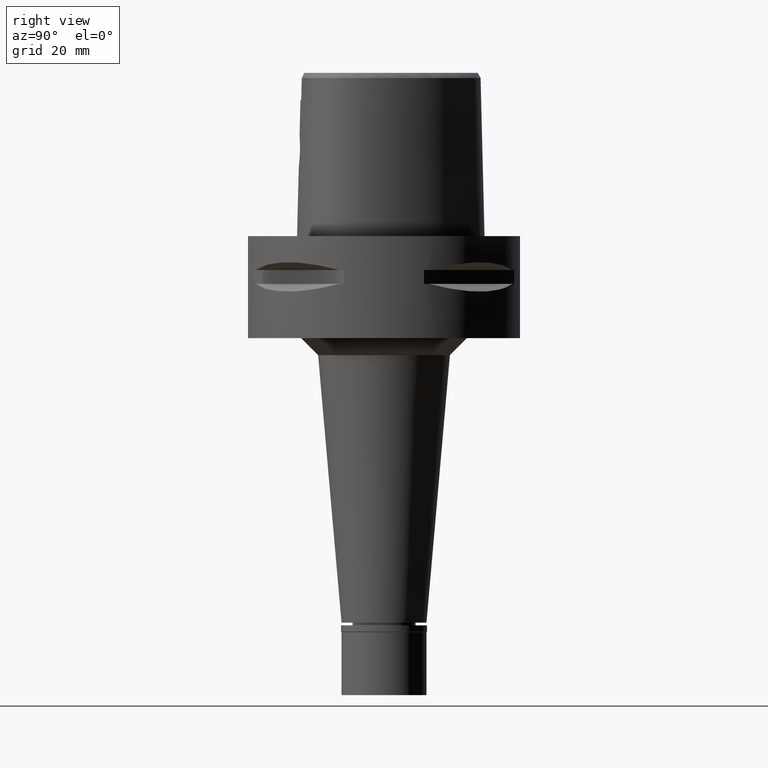
[diagram: clean part render]
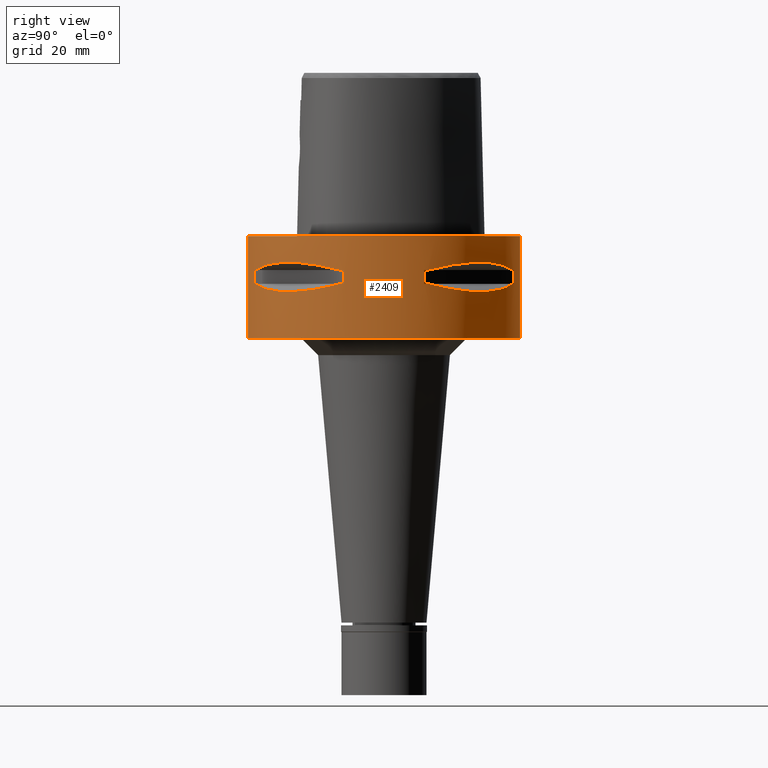
[diagram: same view with one face highlighted and labeled with its STEP entity id]
A machine part, right view. The second image highlights one B-rep face of the part: STEP entity #2409.
In plain terms, the highlighted cylindrical surface (partial cylindrical patch) has radius 40 mm, axis along (0, 0, -1).
Its self-contained STEP definition (entity closure, byte-faithful):
#8 = DIRECTION ( 'NONE',  ( 0.0000000000000000000, 0.0000000000000000000, 1.000000000000000000 ) ) ;
#9 = CARTESIAN_POINT ( 'NONE',  ( 36.74070924258730741, -16.10442380444317578, -9.189948522879960890 ) ) ;
#16 = ORIENTED_EDGE ( 'NONE', *, *, #2294, .T. ) ;
#36 = CARTESIAN_POINT ( 'NONE',  ( 26.21995747456629644, -30.34851826269509800, -16.33009976522055240 ) ) ;
#57 = CARTESIAN_POINT ( 'NONE',  ( 37.74622163926999718, 13.23717311056000057, -9.950000000002001244 ) ) ;
#80 = FACE_BOUND ( 'NONE', #3257, .T. ) ;
#135 = VECTOR ( 'NONE', #8, 1000.000000000000000 ) ;
#137 = DIRECTION ( 'NONE',  ( 0.0000000000000000000, 0.0000000000000000000, -1.000000000000000000 ) ) ;
#176 = EDGE_CURVE ( 'NONE', #212, #4159, #1125, .T. ) ;
#196 = ORIENTED_EDGE ( 'NONE', *, *, #3118, .F. ) ;
#202 = CARTESIAN_POINT ( 'NONE',  ( 0.0000000000000000000, 1.303514053011999969E-14, -9.950000000000001066 ) ) ;
#212 = VERTEX_POINT ( 'NONE', #2250 ) ;
#222 = CARTESIAN_POINT ( 'NONE',  ( 21.62017158009700069, 33.65365962422837498, -15.80156334789098160 ) ) ;
#230 = CARTESIAN_POINT ( 'NONE',  ( 38.23211342708000160, -11.76033600280999991, -14.05000000000000071 ) ) ;
#258 = DIRECTION ( 'NONE',  ( 0.0000000000000000000, -1.000000000000000000, 0.0000000000000000000 ) ) ;
#269 = EDGE_LOOP ( 'NONE', ( #3449, #1575, #1648, #4624 ) ) ;
#314 = CARTESIAN_POINT ( 'NONE',  ( 36.35358138589326416, 16.81132763100200123, -14.94059947015123058 ) ) ;
#322 = ORIENTED_EDGE ( 'NONE', *, *, #2422, .T. ) ;
#353 = CARTESIAN_POINT ( 'NONE',  ( 13.23717311056000057, -37.74622163926999718, -14.05000000000000071 ) ) ;
#359 = DIRECTION ( 'NONE',  ( 0.0000000000000000000, 0.0000000000000000000, 1.000000000000000000 ) ) ;
#365 = CARTESIAN_POINT ( 'NONE',  ( 37.23659447744844897, 14.69039122918117357, -14.43521939500984885 ) ) ;
#367 = CARTESIAN_POINT ( 'NONE',  ( 20.34261333234551472, -34.44518065740425783, -15.60313948593864275 ) ) ;
#373 = ORIENTED_EDGE ( 'NONE', *, *, #4953, .F. ) ;
#392 = CARTESIAN_POINT ( 'NONE',  ( 30.77249687753092289, -25.62819065487347814, -16.26160051742767365 ) ) ;
#417 = CARTESIAN_POINT ( 'NONE',  ( 21.34345216682037716, -33.82993376593525170, -15.76055673748744468 ) ) ;
#418 = CARTESIAN_POINT ( 'NONE',  ( 16.10435486233401647, -36.74073341980540164, -9.189966798070269505 ) ) ;
#431 = DIRECTION ( 'NONE',  ( 0.0000000000000000000, 0.0000000000000000000, 1.000000000000000000 ) ) ;
#463 = CARTESIAN_POINT ( 'NONE',  ( 11.76033600280999991, 38.23211342708000160, -14.05000000000000071 ) ) ;
#464 = ORIENTED_EDGE ( 'NONE', *, *, #4469, .F. ) ;
#499 = VECTOR ( 'NONE', #4519, 1000.000000000000000 ) ;
#552 = CIRCLE ( 'NONE', #1642, 39.99999999999999289 ) ;
#600 = DIRECTION ( 'NONE',  ( 0.3309293277639132058, -0.9436555409818374596, 0.0000000000000000000 ) ) ;
#637 = EDGE_CURVE ( 'NONE', #5155, #1851, #3208, .T. ) ;
#658 = CARTESIAN_POINT ( 'NONE',  ( 38.23211342708000160, -11.76033600280999991, -9.950000000000001066 ) ) ;
#683 = EDGE_CURVE ( 'NONE', #727, #1851, #2139, .T. ) ;
#688 = EDGE_CURVE ( 'NONE', #3793, #4732, #3229, .T. ) ;
#727 = VERTEX_POINT ( 'NONE', #463 ) ;
#728 = CARTESIAN_POINT ( 'NONE',  ( 11.76033600280999991, 38.23211342708000160, -14.05000000000000071 ) ) ;
#791 = CARTESIAN_POINT ( 'NONE',  ( 0.0000000000000000000, 1.303514053011999969E-14, -9.950000000000001066 ) ) ;
#825 = CARTESIAN_POINT ( 'NONE',  ( 21.46607685731536819, -33.75216276490051825, -15.77886817953059051 ) ) ;
#836 = EDGE_CURVE ( 'NONE', #3285, #212, #3458, .T. ) ;
#879 = CARTESIAN_POINT ( 'NONE',  ( 11.76033600280999991, -38.23211342708000160, -9.950000000000001066 ) ) ;
#901 = DIRECTION ( 'NONE',  ( 0.0000000000000000000, 1.000000000000000000, 0.0000000000000000000 ) ) ;
#913 = VERTEX_POINT ( 'NONE', #879 ) ;
#993 = CARTESIAN_POINT ( 'NONE',  ( 22.02254759438460141, 33.39247868354773630, -15.85920599531294783 ) ) ;
#1025 = DIRECTION ( 'NONE',  ( 0.0000000000000000000, 0.0000000000000000000, -1.000000000000000000 ) ) ;
#1050 = DIRECTION ( 'NONE',  ( 0.9436555409818374596, 0.3309293277639132058, 0.0000000000000000000 ) ) ;
#1102 = CARTESIAN_POINT ( 'NONE',  ( 38.23211342708000160, -11.76033600280999991, -14.05000000000000071 ) ) ;
#1111 = CARTESIAN_POINT ( 'NONE',  ( 0.0000000000000000000, 1.303514053011999969E-14, -14.05000000000000071 ) ) ;
#1125 = CIRCLE ( 'NONE', #4062, 39.99999999999997868 ) ;
#1144 = DIRECTION ( 'NONE',  ( 0.2940084000702865574, 0.9558028356769561196, 0.0000000000000000000 ) ) ;
#1146 = CARTESIAN_POINT ( 'NONE',  ( 33.69065616467145929, -21.56243030661679327, -15.79309434609244001 ) ) ;
#1174 = CARTESIAN_POINT ( 'NONE',  ( 36.72682052669194519, -16.14402792113480345, -14.82054974553614635 ) ) ;
#1197 = CARTESIAN_POINT ( 'NONE',  ( 16.10442380448735733, 36.74070924257181758, -9.189948522868265357 ) ) ;
#1199 = CARTESIAN_POINT ( 'NONE',  ( 33.39247868354526361, -22.02254759438564591, -15.85920599531236164 ) ) ;
#1249 = VECTOR ( 'NONE', #137, 1000.000000000000000 ) ;
#1262 = ORIENTED_EDGE ( 'NONE', *, *, #4803, .F. ) ;
#1279 = CYLINDRICAL_SURFACE ( 'NONE', #1890, 40.00000000000000000 ) ;
#1298 = DIRECTION ( 'NONE',  ( 0.0000000000000000000, 0.0000000000000000000, -1.000000000000000000 ) ) ;
#1317 = AXIS2_PLACEMENT_3D ( 'NONE', #791, #359, #1607 ) ;
#1359 = CARTESIAN_POINT ( 'NONE',  ( 0.0000000000000000000, 40.00000000000000000, 0.0000000000000000000 ) ) ;
#1369 = VERTEX_POINT ( 'NONE', #3679 ) ;
#1370 = CARTESIAN_POINT ( 'NONE',  ( 0.0000000000000000000, 1.303514053011999969E-14, -14.05000000000000071 ) ) ;
#1386 = EDGE_CURVE ( 'NONE', #4582, #3107, #4573, .T. ) ;
#1394 = ORIENTED_EDGE ( 'NONE', *, *, #176, .T. ) ;
#1396 = CARTESIAN_POINT ( 'NONE',  ( 35.11589783530617126, 19.18269457493275354, -15.40342377741110091 ) ) ;
#1401 = DIRECTION ( 'NONE',  ( 0.9558028356769561196, 0.2940084000702865574, 0.0000000000000000000 ) ) ;
#1415 = B_SPLINE_CURVE_WITH_KNOTS ( 'NONE', 3,
 ( #2378, #3604, #4333, #3917, #367, #4762, #1960, #417, #2403, #3551, #825, #5148, #36, #2748, #392, #1513, #1990, #1199, #4361, #3161, #1146, #2717, #1568, #5124, #1174, #2825 ),
 .UNSPECIFIED., .F., .F.,
 ( 4, 1, 1, 1, 1, 1, 1, 2, 2, 2, 1, 1, 1, 1, 1, 1, 2, 2, 4 ),
 ( 0.0000000000000000000, 0.1250000000000018319, 0.1875000000000027478, 0.2187500000000032196, 0.2343750000000035805, 0.2421875000000038025, 0.2460937500000040523, 0.2480468750000043576, 0.2500000000000046629, 0.5000000000000000000, 0.6249999999999975575, 0.6874999999999964473, 0.7187499999999961142, 0.7343749999999960032, 0.7421874999999960032, 0.7460937499999957812, 0.7480468749999958922, 0.7499999999999958922, 1.000000000000000000 ),
 .UNSPECIFIED. ) ;
#1435 = ORIENTED_EDGE ( 'NONE', *, *, #637, .F. ) ;
#1497 = CIRCLE ( 'NONE', #4669, 39.99999999999997868 ) ;
#1512 = ORIENTED_EDGE ( 'NONE', *, *, #1656, .T. ) ;
#1513 = CARTESIAN_POINT ( 'NONE',  ( 32.30995221950663421, -23.60097336453835837, -16.06165603927566821 ) ) ;
#1549 = AXIS2_PLACEMENT_3D ( 'NONE', #4015, #431, #2029 ) ;
#1568 = CARTESIAN_POINT ( 'NONE',  ( 33.72697758561029246, -21.50560509406250276, -15.78472370821739901 ) ) ;
#1575 = ORIENTED_EDGE ( 'NONE', *, *, #2243, .T. ) ;
#1593 = CARTESIAN_POINT ( 'NONE',  ( 37.74622163926999718, -13.23717311056000057, -9.950000000002001244 ) ) ;
#1607 = DIRECTION ( 'NONE',  ( 0.2940084000702865574, -0.9558028356769561196, 0.0000000000000000000 ) ) ;
#1622 = VERTEX_POINT ( 'NONE', #1102 ) ;
#1642 = AXIS2_PLACEMENT_3D ( 'NONE', #3573, #2793, #2351 ) ;
#1648 = ORIENTED_EDGE ( 'NONE', *, *, #2864, .T. ) ;
#1650 = CARTESIAN_POINT ( 'NONE',  ( 32.22570670474386390, -23.88364259914968457, -7.859869859768261691 ) ) ;
#1656 = EDGE_CURVE ( 'NONE', #913, #2430, #4912, .T. ) ;
#1673 = FACE_BOUND ( 'NONE', #3194, .T. ) ;
#1728 = DIRECTION ( 'NONE',  ( 0.0000000000000000000, 0.0000000000000000000, 1.000000000000000000 ) ) ;
#1733 = VERTEX_POINT ( 'NONE', #2789 ) ;
#1786 = CARTESIAN_POINT ( 'NONE',  ( 16.14402792110260521, 36.72682052670324993, -14.82054974552761095 ) ) ;
#1800 = DIRECTION ( 'NONE',  ( 0.0000000000000000000, 0.0000000000000000000, -1.000000000000000000 ) ) ;
#1806 = CIRCLE ( 'NONE', #4480, 39.99999999999999289 ) ;
#1822 = DIRECTION ( 'NONE',  ( 0.0000000000000000000, 0.0000000000000000000, -1.000000000000000000 ) ) ;
#1851 = VERTEX_POINT ( 'NONE', #2346 ) ;
#1889 = AXIS2_PLACEMENT_3D ( 'NONE', #1370, #4562, #600 ) ;
#1890 = AXIS2_PLACEMENT_3D ( 'NONE', #2875, #1822, #258 ) ;
#1935 = CARTESIAN_POINT ( 'NONE',  ( 34.44518065740276569, 20.34261333234974245, -15.60313948593977074 ) ) ;
#1958 = CARTESIAN_POINT ( 'NONE',  ( 35.41596287855380609, 18.83173199174708046, -8.619939612211814151 ) ) ;
#1960 = CARTESIAN_POINT ( 'NONE',  ( 21.20128033779640830, -33.91944728533381692, -15.73905907260415837 ) ) ;
#1990 = CARTESIAN_POINT ( 'NONE',  ( 33.03835700909839090, -22.55421454657001235, -15.93168855142863904 ) ) ;
#2015 = CARTESIAN_POINT ( 'NONE',  ( 35.41591128517127629, -18.83182902070238285, -8.619912199408810594 ) ) ;
#2029 = DIRECTION ( 'NONE',  ( 0.0000000000000000000, -1.000000000000000000, 0.0000000000000000000 ) ) ;
#2037 = CARTESIAN_POINT ( 'NONE',  ( 36.74073341982096252, 16.10435486228974611, -9.189966798081965038 ) ) ;
#2051 = ORIENTED_EDGE ( 'NONE', *, *, #688, .T. ) ;
#2121 = CARTESIAN_POINT ( 'NONE',  ( 0.0000000000000000000, 1.303514053011999969E-14, -9.950000000000001066 ) ) ;
#2139 = CIRCLE ( 'NONE', #5062, 39.99999999999999289 ) ;
#2185 = CARTESIAN_POINT ( 'NONE',  ( 32.16767032371209467, 23.95303639237203797, -16.14729882780224202 ) ) ;
#2191 = CARTESIAN_POINT ( 'NONE',  ( 13.23717311056000057, -37.74622163926999718, -9.950000000002001244 ) ) ;
#2210 = LINE ( 'NONE', #230, #499 ) ;
#2236 = CARTESIAN_POINT ( 'NONE',  ( 34.09685321779860345, 20.91613153242115075, -15.69507322892878953 ) ) ;
#2243 = EDGE_CURVE ( 'NONE', #3107, #1369, #4782, .T. ) ;
#2247 = LINE ( 'NONE', #1359, #3260 ) ;
#2250 = CARTESIAN_POINT ( 'NONE',  ( 13.23717311056000057, 37.74622163926999718, -9.950000000002001244 ) ) ;
#2294 = EDGE_CURVE ( 'NONE', #1622, #1733, #552, .T. ) ;
#2327 = CARTESIAN_POINT ( 'NONE',  ( 23.60097336453497618, 32.30995221951452834, -16.06165603927751917 ) ) ;
#2346 = CARTESIAN_POINT ( 'NONE',  ( 13.23717311056000057, 37.74622163926999718, -14.05000000000000071 ) ) ;
#2351 = DIRECTION ( 'NONE',  ( 0.9558028356769561196, -0.2940084000702865574, 0.0000000000000000000 ) ) ;
#2377 = CARTESIAN_POINT ( 'NONE',  ( 30.36058330527161075, 26.20795918965221460, -7.669882118573520202 ) ) ;
#2378 = CARTESIAN_POINT ( 'NONE',  ( 13.23717311056000057, -37.74622163926999718, -14.05000000000000071 ) ) ;
#2399 = LINE ( 'NONE', #3994, #3340 ) ;
#2403 = CARTESIAN_POINT ( 'NONE',  ( 21.40429668490248005, -33.79139713908606524, -15.76966389594713647 ) ) ;
#2409 = ADVANCED_FACE ( 'NONE', ( #3654, #80, #1673 ), #1279, .T. ) ;
#2422 = EDGE_CURVE ( 'NONE', #5155, #4473, #5141, .T. ) ;
#2430 = VERTEX_POINT ( 'NONE', #2191 ) ;
#2434 = DIRECTION ( 'NONE',  ( 0.9436555409818374596, -0.3309293277639132058, 0.0000000000000000000 ) ) ;
#2453 = CARTESIAN_POINT ( 'NONE',  ( 18.83182902076451626, 35.41591128513827869, -8.619912199391258412 ) ) ;
#2464 = ORIENTED_EDGE ( 'NONE', *, *, #4507, .T. ) ;
#2506 = EDGE_CURVE ( 'NONE', #3483, #3285, #1806, .T. ) ;
#2517 = CARTESIAN_POINT ( 'NONE',  ( 38.23211342708000160, 11.76033600280999991, -9.950000000000001066 ) ) ;
#2579 = CARTESIAN_POINT ( 'NONE',  ( 21.75464223249287699, 33.56701934068274795, -15.82109001420633732 ) ) ;
#2600 = CARTESIAN_POINT ( 'NONE',  ( 21.56243030661663695, 33.69065616467183588, -15.79309434609252705 ) ) ;
#2621 = CARTESIAN_POINT ( 'NONE',  ( 37.74622163926999718, 13.23717311056000057, -14.05000000000000071 ) ) ;
#2715 = DIRECTION ( 'NONE',  ( 0.0000000000000000000, 0.0000000000000000000, -1.000000000000000000 ) ) ;
#2717 = CARTESIAN_POINT ( 'NONE',  ( 33.71529052282339478, -21.52391145898932834, -15.78742602700008568 ) ) ;
#2732 = AXIS2_PLACEMENT_3D ( 'NONE', #3774, #1298, #901 ) ;
#2746 = CARTESIAN_POINT ( 'NONE',  ( 30.34851826270024944, 26.21995747455423853, -16.33009976521772799 ) ) ;
#2748 = CARTESIAN_POINT ( 'NONE',  ( 29.31642813390815050, -27.25214773984377459, -16.33014064577162472 ) ) ;
#2756 = CARTESIAN_POINT ( 'NONE',  ( 11.76033600280999991, 38.23211342708000160, -9.950000000000001066 ) ) ;
#2789 = CARTESIAN_POINT ( 'NONE',  ( 37.74622163926999718, -13.23717311056000057, -14.05000000000000071 ) ) ;
#2793 = DIRECTION ( 'NONE',  ( 0.0000000000000000000, 0.0000000000000000000, -1.000000000000000000 ) ) ;
#2825 = CARTESIAN_POINT ( 'NONE',  ( 37.74622163926999718, -13.23717311056000057, -14.05000000000000071 ) ) ;
#2864 = EDGE_CURVE ( 'NONE', #1369, #3093, #4986, .T. ) ;
#2875 = CARTESIAN_POINT ( 'NONE',  ( 0.0000000000000000000, 1.303514053011999969E-14, 6.440000000000000391 ) ) ;
#2928 = ORIENTED_EDGE ( 'NONE', *, *, #683, .T. ) ;
#2937 = ORIENTED_EDGE ( 'NONE', *, *, #2506, .T. ) ;
#2987 = ORIENTED_EDGE ( 'NONE', *, *, #3106, .F. ) ;
#2995 = CARTESIAN_POINT ( 'NONE',  ( 33.82993376593505275, 21.34345216682098112, -15.76055673748761166 ) ) ;
#3038 = CARTESIAN_POINT ( 'NONE',  ( 0.0000000000000000000, 1.303514053011999969E-14, -9.950000000000001066 ) ) ;
#3077 = CARTESIAN_POINT ( 'NONE',  ( 0.0000000000000000000, 1.303514053011999969E-14, -14.05000000000000071 ) ) ;
#3093 = VERTEX_POINT ( 'NONE', #4386 ) ;
#3106 = EDGE_CURVE ( 'NONE', #3793, #1733, #1415, .T. ) ;
#3107 = VERTEX_POINT ( 'NONE', #3110 ) ;
#3110 = CARTESIAN_POINT ( 'NONE',  ( 0.0000000000000000000, -40.00000000000000000, 0.0000000000000000000 ) ) ;
#3118 = EDGE_CURVE ( 'NONE', #727, #4159, #3577, .T. ) ;
#3137 = CARTESIAN_POINT ( 'NONE',  ( 18.83173199180924939, -35.41596287852073033, -8.619939612194269074 ) ) ;
#3161 = CARTESIAN_POINT ( 'NONE',  ( 33.65365962422774260, -21.62017158009728135, -15.80156334789082528 ) ) ;
#3162 = CARTESIAN_POINT ( 'NONE',  ( 30.36058330530470784, -26.20795918961908555, -7.669863843598861308 ) ) ;
#3184 = DIRECTION ( 'NONE',  ( 0.0000000000000000000, 0.0000000000000000000, -1.000000000000000000 ) ) ;
#3194 = EDGE_LOOP ( 'NONE', ( #1394, #196, #2928, #1435, #322, #464, #2937, #5019 ) ) ;
#3208 = B_SPLINE_CURVE_WITH_KNOTS ( 'NONE', 3,
 ( #2621, #365, #314, #1396, #1935, #2236, #3947, #2995, #3499, #4701, #3890, #2185, #2746, #4590, #3772, #2327, #4954, #993, #2579, #222, #2600, #4330, #3383, #4190, #1786, #3525 ),
 .UNSPECIFIED., .F., .F.,
 ( 4, 1, 1, 1, 1, 1, 1, 2, 2, 2, 1, 1, 1, 1, 1, 1, 2, 2, 4 ),
 ( 0.0000000000000000000, 0.1249999999999938660, 0.1874999999999906741, 0.2187499999999889255, 0.2343749999999879541, 0.2421874999999872879, 0.2460937499999869549, 0.2480468749999869271, 0.2499999999999869271, 0.4999999999999968914, 0.6250000000000018874, 0.6875000000000044409, 0.7187500000000057732, 0.7343750000000064393, 0.7421875000000067724, 0.7460937500000065503, 0.7480468750000062172, 0.7500000000000058842, 1.000000000000000000 ),
 .UNSPECIFIED. ) ;
#3210 = CARTESIAN_POINT ( 'NONE',  ( 26.20795918965211158, 30.36058330527170668, -7.669863843587160446 ) ) ;
#3229 = CIRCLE ( 'NONE', #1889, 39.99999999999997868 ) ;
#3257 = EDGE_LOOP ( 'NONE', ( #2464, #373, #16, #2987, #2051, #1262, #1512, #4367 ) ) ;
#3260 = VECTOR ( 'NONE', #1800, 1000.000000000000000 ) ;
#3273 = CARTESIAN_POINT ( 'NONE',  ( 38.23211342708000160, 11.76033600280999991, -14.05000000000000071 ) ) ;
#3285 = VERTEX_POINT ( 'NONE', #3321 ) ;
#3321 = CARTESIAN_POINT ( 'NONE',  ( 37.74622163926999718, 13.23717311056000057, -9.950000000002001244 ) ) ;
#3340 = VECTOR ( 'NONE', #3184, 1000.000000000000000 ) ;
#3372 = LINE ( 'NONE', #2517, #1249 ) ;
#3383 = CARTESIAN_POINT ( 'NONE',  ( 21.50560509406274434, 33.72697758561020720, -15.78472370821746118 ) ) ;
#3391 = AXIS2_PLACEMENT_3D ( 'NONE', #3077, #1025, #1050 ) ;
#3398 = CARTESIAN_POINT ( 'NONE',  ( 37.74622163926999718, -13.23717311056000057, -9.950000000002001244 ) ) ;
#3426 = DIRECTION ( 'NONE',  ( 0.0000000000000000000, 0.0000000000000000000, 1.000000000000000000 ) ) ;
#3449 = ORIENTED_EDGE ( 'NONE', *, *, #1386, .T. ) ;
#3458 = B_SPLINE_CURVE_WITH_KNOTS ( 'NONE', 3,
 ( #57, #2037, #1958, #4811, #2377, #3210, #3657, #2453, #1197, #3549 ),
 .UNSPECIFIED., .F., .F.,
 ( 4, 2, 2, 2, 4 ),
 ( 0.0000000000000000000, 0.2500000000000000000, 0.5000000000000000000, 0.7500000000000000000, 1.000000000000000000 ),
 .UNSPECIFIED. ) ;
#3483 = VERTEX_POINT ( 'NONE', #4625 ) ;
#3499 = CARTESIAN_POINT ( 'NONE',  ( 33.79139713908593023, 21.40429668490282467, -15.76966389594722528 ) ) ;
#3525 = CARTESIAN_POINT ( 'NONE',  ( 13.23717311056000057, 37.74622163926999718, -14.05000000000000071 ) ) ;
#3528 = CARTESIAN_POINT ( 'NONE',  ( 26.20795918961901094, -30.36058330530476113, -7.669882118561820228 ) ) ;
#3545 = DIRECTION ( 'NONE',  ( 0.0000000000000000000, 0.0000000000000000000, -1.000000000000000000 ) ) ;
#3549 = CARTESIAN_POINT ( 'NONE',  ( 13.23717311056000057, 37.74622163926999718, -9.950000000002001244 ) ) ;
#3551 = CARTESIAN_POINT ( 'NONE',  ( 21.44484052678270913, -33.76566745675011560, -15.77571175125575031 ) ) ;
#3560 = VECTOR ( 'NONE', #3545, 1000.000000000000000 ) ;
#3573 = CARTESIAN_POINT ( 'NONE',  ( 0.0000000000000000000, 1.303514053011999969E-14, -14.05000000000000071 ) ) ;
#3577 = LINE ( 'NONE', #728, #135 ) ;
#3604 = CARTESIAN_POINT ( 'NONE',  ( 14.69039122917563844, -37.23659447745037454, -14.43521939500837981 ) ) ;
#3606 = CARTESIAN_POINT ( 'NONE',  ( 13.23717311056000057, -37.74622163926999718, -9.950000000002001244 ) ) ;
#3654 = FACE_OUTER_BOUND ( 'NONE', #269, .T. ) ;
#3657 = CARTESIAN_POINT ( 'NONE',  ( 23.88364259920617272, 32.22570670470200582, -7.859869859750706844 ) ) ;
#3679 = CARTESIAN_POINT ( 'NONE',  ( 0.0000000000000000000, -40.00000000000000000, -30.00000000000000000 ) ) ;
#3689 = CARTESIAN_POINT ( 'NONE',  ( 0.0000000000000000000, 40.00000000000000000, 0.0000000000000000000 ) ) ;
#3772 = CARTESIAN_POINT ( 'NONE',  ( 25.62819065486898396, 30.77249687754148866, -16.26160051743016055 ) ) ;
#3774 = CARTESIAN_POINT ( 'NONE',  ( 0.0000000000000000000, 1.303514053011999969E-14, 0.0000000000000000000 ) ) ;
#3793 = VERTEX_POINT ( 'NONE', #353 ) ;
#3890 = CARTESIAN_POINT ( 'NONE',  ( 33.75216276490046852, 21.46607685731544990, -15.77886817953061005 ) ) ;
#3917 = CARTESIAN_POINT ( 'NONE',  ( 19.18269457492549179, -35.11589783530871500, -15.40342377740917001 ) ) ;
#3935 = B_SPLINE_CURVE_WITH_KNOTS ( 'NONE', 3,
 ( #3606, #418, #3137, #4814, #3528, #3162, #1650, #2015, #9, #1593 ),
 .UNSPECIFIED., .F., .F.,
 ( 4, 2, 2, 2, 4 ),
 ( 0.0000000000000000000, 0.2499999999999998890, 0.4999999999999997780, 0.7499999999999998890, 1.000000000000000000 ),
 .UNSPECIFIED. ) ;
#3947 = CARTESIAN_POINT ( 'NONE',  ( 33.91944728533341191, 21.20128033779756294, -15.73905907260447101 ) ) ;
#3994 = CARTESIAN_POINT ( 'NONE',  ( 11.76033600280999991, -38.23211342708000160, -9.950000000000001066 ) ) ;
#4015 = CARTESIAN_POINT ( 'NONE',  ( 0.0000000000000000000, 1.303514053011999969E-14, -30.00000000000000000 ) ) ;
#4019 = CARTESIAN_POINT ( 'NONE',  ( 11.76033600280999991, -38.23211342708000160, -14.05000000000000071 ) ) ;
#4062 = AXIS2_PLACEMENT_3D ( 'NONE', #3038, #3426, #4630 ) ;
#4159 = VERTEX_POINT ( 'NONE', #2756 ) ;
#4190 = CARTESIAN_POINT ( 'NONE',  ( 18.89342208871625317, 35.39137327286631063, -15.39779115588368619 ) ) ;
#4319 = CARTESIAN_POINT ( 'NONE',  ( 37.74622163926999718, 13.23717311056000057, -14.05000000000000071 ) ) ;
#4330 = CARTESIAN_POINT ( 'NONE',  ( 21.52391145898924663, 33.71529052282357952, -15.78742602700012831 ) ) ;
#4332 = EDGE_CURVE ( 'NONE', #2430, #4609, #3935, .T. ) ;
#4333 = CARTESIAN_POINT ( 'NONE',  ( 16.81132763099230587, -36.35358138589664634, -14.94059947014864775 ) ) ;
#4361 = CARTESIAN_POINT ( 'NONE',  ( 33.56701934068144766, -21.75464223249341345, -15.82109001420603533 ) ) ;
#4367 = ORIENTED_EDGE ( 'NONE', *, *, #4332, .T. ) ;
#4386 = CARTESIAN_POINT ( 'NONE',  ( 0.0000000000000000000, 40.00000000000000000, -30.00000000000000000 ) ) ;
#4469 = EDGE_CURVE ( 'NONE', #3483, #4473, #3372, .T. ) ;
#4473 = VERTEX_POINT ( 'NONE', #3273 ) ;
#4480 = AXIS2_PLACEMENT_3D ( 'NONE', #202, #4620, #1401 ) ;
#4507 = EDGE_CURVE ( 'NONE', #4609, #5001, #1497, .T. ) ;
#4519 = DIRECTION ( 'NONE',  ( 0.0000000000000000000, 0.0000000000000000000, 1.000000000000000000 ) ) ;
#4562 = DIRECTION ( 'NONE',  ( 0.0000000000000000000, 0.0000000000000000000, -1.000000000000000000 ) ) ;
#4573 = CIRCLE ( 'NONE', #2732, 40.00000000000000000 ) ;
#4582 = VERTEX_POINT ( 'NONE', #3689 ) ;
#4590 = CARTESIAN_POINT ( 'NONE',  ( 27.25214773984120598, 29.31642813391417590, -16.33014064577303515 ) ) ;
#4609 = VERTEX_POINT ( 'NONE', #3398 ) ;
#4620 = DIRECTION ( 'NONE',  ( 0.0000000000000000000, 0.0000000000000000000, 1.000000000000000000 ) ) ;
#4624 = ORIENTED_EDGE ( 'NONE', *, *, #4689, .F. ) ;
#4625 = CARTESIAN_POINT ( 'NONE',  ( 38.23211342708000160, 11.76033600280999991, -9.950000000000001066 ) ) ;
#4630 = DIRECTION ( 'NONE',  ( 0.3309293277639132058, 0.9436555409818374596, 0.0000000000000000000 ) ) ;
#4669 = AXIS2_PLACEMENT_3D ( 'NONE', #2121, #1728, #2434 ) ;
#4689 = EDGE_CURVE ( 'NONE', #4582, #3093, #2247, .T. ) ;
#4701 = CARTESIAN_POINT ( 'NONE',  ( 33.76566745675005166, 21.44484052678287256, -15.77571175125579828 ) ) ;
#4732 = VERTEX_POINT ( 'NONE', #4019 ) ;
#4755 = CARTESIAN_POINT ( 'NONE',  ( 0.0000000000000000000, -40.00000000000000000, 0.0000000000000000000 ) ) ;
#4762 = CARTESIAN_POINT ( 'NONE',  ( 20.91613153241887701, -34.09685321779939926, -15.69507322892818557 ) ) ;
#4782 = LINE ( 'NONE', #4755, #3560 ) ;
#4803 = EDGE_CURVE ( 'NONE', #913, #4732, #2399, .T. ) ;
#4811 = CARTESIAN_POINT ( 'NONE',  ( 32.22577213857955059, 23.88355431037101795, -7.859897272571259919 ) ) ;
#4814 = CARTESIAN_POINT ( 'NONE',  ( 23.88355431042747767, -32.22577213853765699, -7.859897272553716618 ) ) ;
#4912 = CIRCLE ( 'NONE', #1317, 39.99999999999999289 ) ;
#4953 = EDGE_CURVE ( 'NONE', #1622, #5001, #2210, .T. ) ;
#4954 = CARTESIAN_POINT ( 'NONE',  ( 22.55421454656803704, 33.03835700910301654, -15.93168855142971374 ) ) ;
#4986 = CIRCLE ( 'NONE', #1549, 40.00000000000000000 ) ;
#5001 = VERTEX_POINT ( 'NONE', #658 ) ;
#5019 = ORIENTED_EDGE ( 'NONE', *, *, #836, .T. ) ;
#5062 = AXIS2_PLACEMENT_3D ( 'NONE', #1111, #2715, #1144 ) ;
#5124 = CARTESIAN_POINT ( 'NONE',  ( 35.39137327285502010, -18.89342208874845142, -15.39779115589221625 ) ) ;
#5141 = CIRCLE ( 'NONE', #3391, 39.99999999999997868 ) ;
#5148 = CARTESIAN_POINT ( 'NONE',  ( 23.95303639238279914, -32.16767032370825063, -16.14729882780506287 ) ) ;
#5155 = VERTEX_POINT ( 'NONE', #4319 ) ;